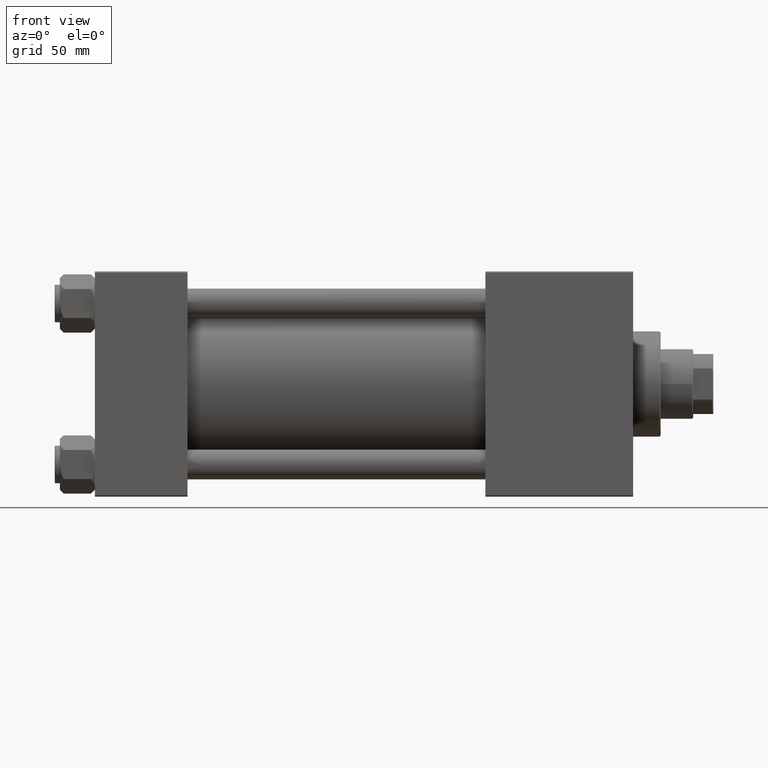
[diagram: clean part render]
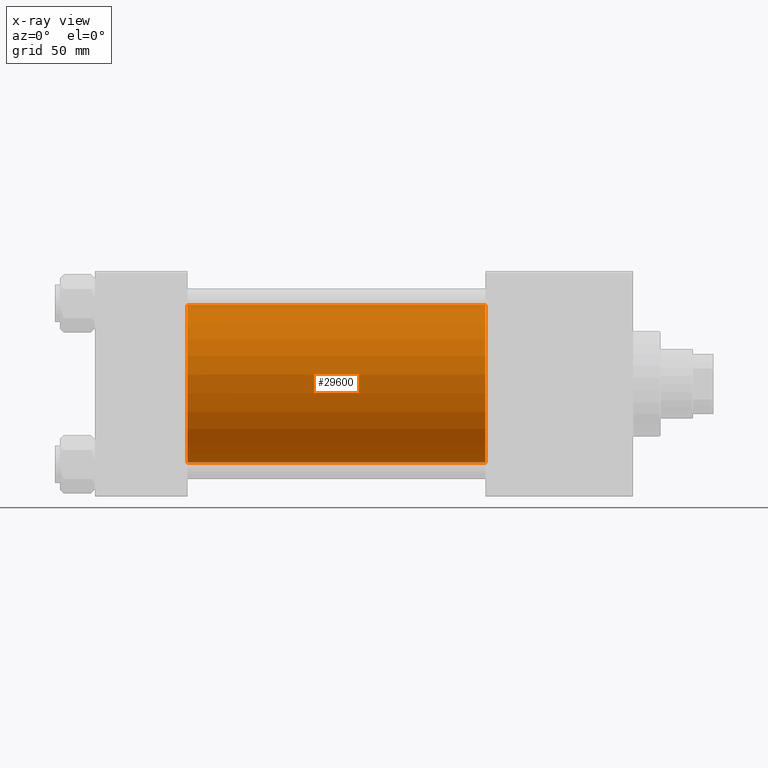
[diagram: x-ray — body ghosted, one internal face saturated and labeled with its STEP entity id]
A machine part, front view, then the same camera in x-ray: the body is ghosted and one INTERNAL B-rep face — a face not visible from any outside direction — is saturated and labeled: STEP entity #29600.
In plain terms, the highlighted cylindrical surface (partial cylindrical patch) has radius 31.5 mm, axis along (-1, -0, -0).
Its self-contained STEP definition (entity closure, byte-faithful):
#2095 = LINE ( 'NONE', #25966, #4207 ) ;
#3057 = CARTESIAN_POINT ( 'NONE',  ( 156.0000000000000000, 1.255552203348951850E-15, -31.50000000000000000 ) ) ;
#4207 = VECTOR ( 'NONE', #10894, 1000.000000000000000 ) ;
#6439 = EDGE_CURVE ( 'NONE', #22928, #27168, #19865, .T. ) ;
#7536 = CARTESIAN_POINT ( 'NONE',  ( 37.00000000000000000, -2.602085213965210642E-15, 0.000000000000000000 ) ) ;
#8235 = AXIS2_PLACEMENT_3D ( 'NONE', #36200, #25026, #32292 ) ;
#8463 = AXIS2_PLACEMENT_3D ( 'NONE', #7536, #27255, #15329 ) ;
#8505 = VERTEX_POINT ( 'NONE', #23352 ) ;
#10067 = VERTEX_POINT ( 'NONE', #50666 ) ;
#10894 = DIRECTION ( 'NONE',  ( -1.000000000000000000, -0.000000000000000000, -0.000000000000000000 ) ) ;
#11024 = EDGE_CURVE ( 'NONE', #27168, #10067, #30190, .T. ) ;
#11232 = CARTESIAN_POINT ( 'NONE',  ( 156.0000000000000000, 1.255552203348951850E-15, -31.50000000000000000 ) ) ;
#12285 = EDGE_CURVE ( 'NONE', #8505, #10067, #43281, .T. ) ;
#12464 = DIRECTION ( 'NONE',  ( -1.000000000000000000, -0.000000000000000000, -0.000000000000000000 ) ) ;
#14865 = DIRECTION ( 'NONE',  ( -1.000000000000000000, -0.000000000000000000, -0.000000000000000000 ) ) ;
#15329 = DIRECTION ( 'NONE',  ( 0.000000000000000000, 0.000000000000000000, -1.000000000000000000 ) ) ;
#16883 = FACE_OUTER_BOUND ( 'NONE', #50558, .T. ) ;
#18163 = ORIENTED_EDGE ( 'NONE', *, *, #6439, .T. ) ;
#19865 = CIRCLE ( 'NONE', #8235, 31.50000000000000000 ) ;
#22928 = VERTEX_POINT ( 'NONE', #26753 ) ;
#23352 = CARTESIAN_POINT ( 'NONE',  ( 37.00000000000000000, -2.602085213965210642E-15, 31.50000000000000000 ) ) ;
#25026 = DIRECTION ( 'NONE',  ( 1.000000000000000000, 0.000000000000000000, 0.000000000000000000 ) ) ;
#25966 = CARTESIAN_POINT ( 'NONE',  ( 156.0000000000000000, -2.602085213965210642E-15, 31.50000000000000000 ) ) ;
#26753 = CARTESIAN_POINT ( 'NONE',  ( 156.0000000000000000, -2.602085213965210642E-15, 31.50000000000000000 ) ) ;
#27168 = VERTEX_POINT ( 'NONE', #3057 ) ;
#27255 = DIRECTION ( 'NONE',  ( 1.000000000000000000, 0.000000000000000000, 0.000000000000000000 ) ) ;
#28303 = DIRECTION ( 'NONE',  ( 0.000000000000000000, 0.000000000000000000, 1.000000000000000000 ) ) ;
#28322 = VECTOR ( 'NONE', #14865, 1000.000000000000000 ) ;
#29600 = ADVANCED_FACE ( 'NONE', ( #16883 ), #32711, .F. ) ;
#30190 = LINE ( 'NONE', #11232, #28322 ) ;
#31336 = ORIENTED_EDGE ( 'NONE', *, *, #12285, .F. ) ;
#32292 = DIRECTION ( 'NONE',  ( 0.000000000000000000, 0.000000000000000000, -1.000000000000000000 ) ) ;
#32711 = CYLINDRICAL_SURFACE ( 'NONE', #46252, 31.50000000000000000 ) ;
#36200 = CARTESIAN_POINT ( 'NONE',  ( 156.0000000000000000, -2.602085213965210642E-15, 0.000000000000000000 ) ) ;
#37460 = ORIENTED_EDGE ( 'NONE', *, *, #11024, .T. ) ;
#37601 = EDGE_CURVE ( 'NONE', #22928, #8505, #2095, .T. ) ;
#43281 = CIRCLE ( 'NONE', #8463, 31.50000000000000000 ) ;
#44133 = ORIENTED_EDGE ( 'NONE', *, *, #37601, .F. ) ;
#46252 = AXIS2_PLACEMENT_3D ( 'NONE', #48340, #12464, #28303 ) ;
#48340 = CARTESIAN_POINT ( 'NONE',  ( 156.0000000000000000, -2.602085213965210642E-15, 0.000000000000000000 ) ) ;
#50558 = EDGE_LOOP ( 'NONE', ( #18163, #37460, #31336, #44133 ) ) ;
#50666 = CARTESIAN_POINT ( 'NONE',  ( 37.00000000000000000, 1.255552203348951850E-15, -31.50000000000000000 ) ) ;